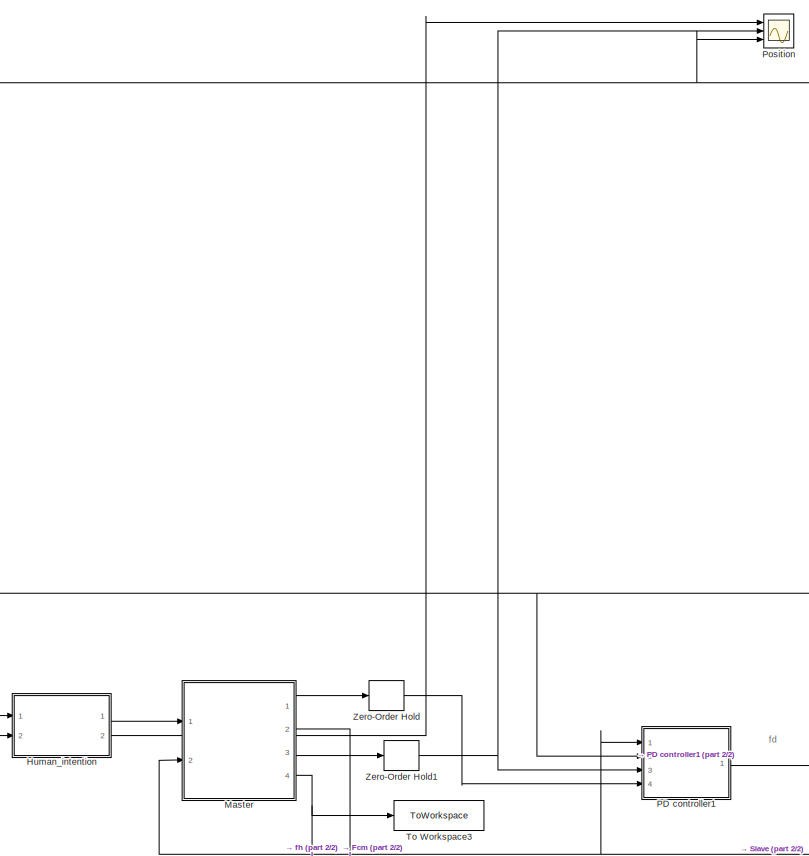
[diagram: root canvas - part 1/2, left side, full height]
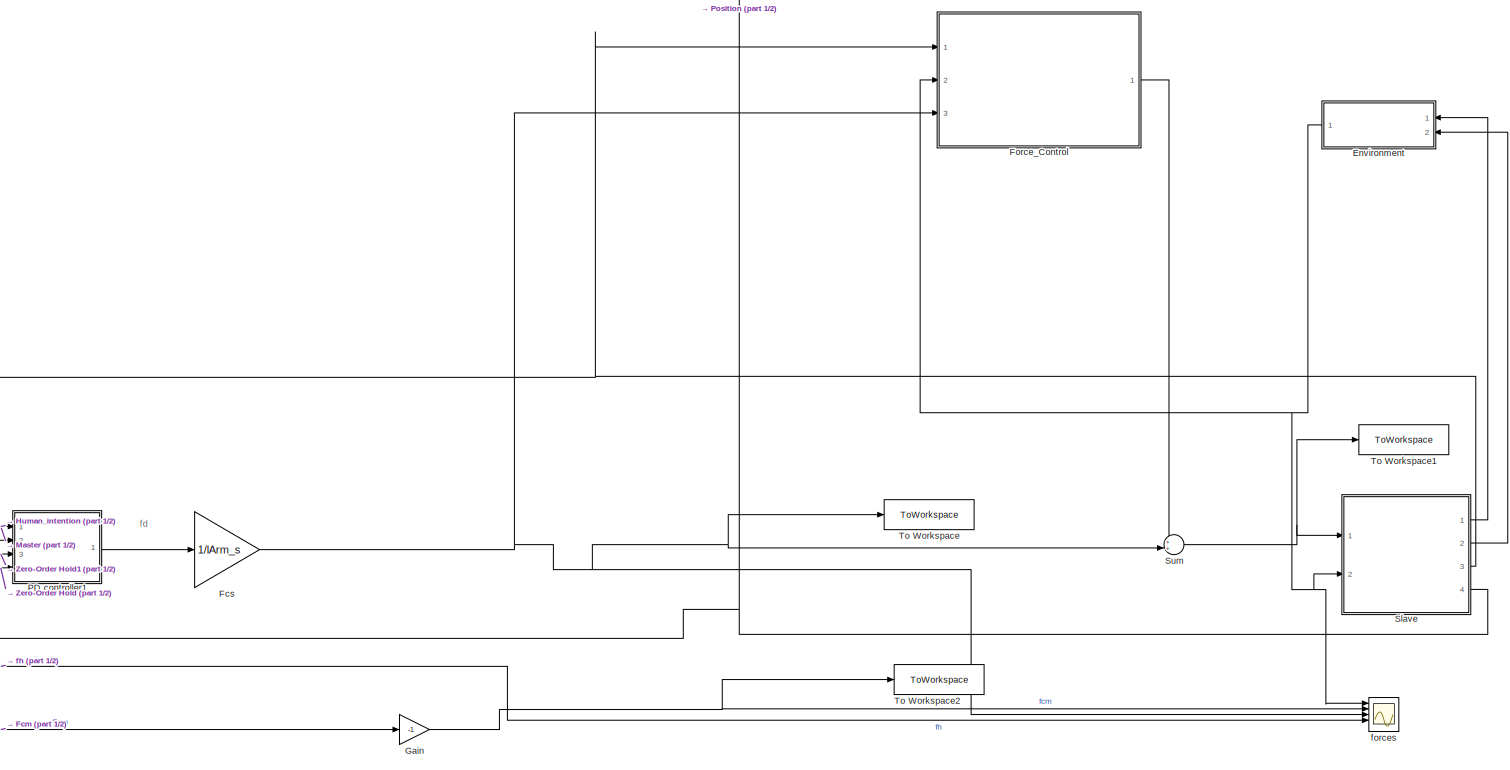
[diagram: root canvas - part 2/2, center side, full height]
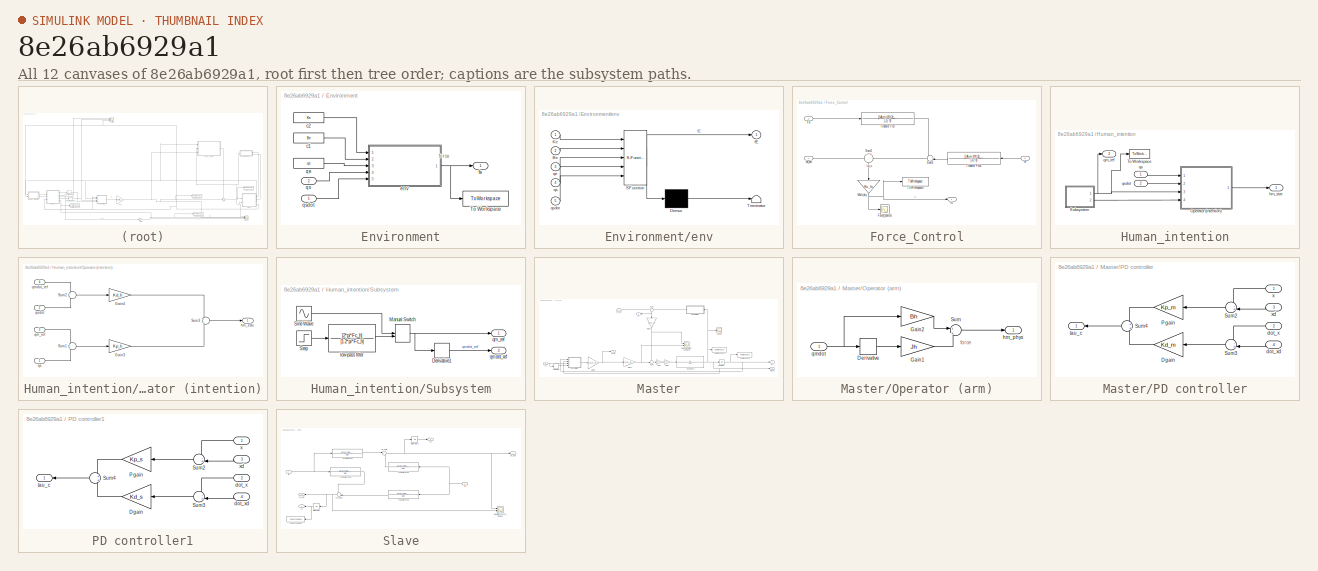
[diagram: thumbnail index - all 12 canvases of the model, root first then tree order]
MODEL slx_8e26ab6929a1
KIND model
CONFIG AbsTol = auto
CONFIG EnableMultiTasking = off
CONFIG FixedStep = auto
CONFIG MaxStep = auto
CONFIG MinStep = auto
CONFIG RelTol = 1e-3
CONFIG SampleTimeConstraint = Unconstrained
CONFIG Solver = VariableStepAuto
CONFIG SolverName = VariableStepAuto
CONFIG StartTime = 0.0
CONFIG StopTime = 7
BLOCK [SubSystem] Environment
  Ports = [2, 1]
  RequestExecContextInheritance = off
BLOCK [ToWorkspace] Environment/To Workspace
  FixptAsFi = on
  MaxDataPoints = inf
  Ports = [1]
  SampleTime = -1
  SaveFormat = Timeseries
  VariableName = fe
BLOCK [Constant] Environment/c1
  SampleTime = 0
  Value = Be
BLOCK [Constant] Environment/c2
  SampleTime = 0
  Value = Ke
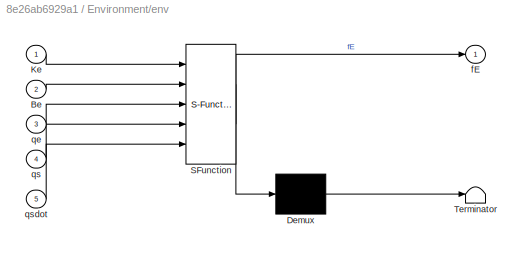
BLOCK [SubSystem] Environment/env
  ErrorFcn = Stateflow.Translate.translate
  PermitHierarchicalResolution = ExplicitOnly
  Ports = [5, 1]
  RequestExecContextInheritance = off
  SFBlockType = MATLAB Function
  TreatAsAtomicUnit = on
BLOCK [Demux] Environment/env/ Demux 
  Outputs = 1
  Ports = [1, 1]
BLOCK [S-Function] Environment/env/ SFunction 
  EnableBusSupport = on
  FunctionName = sf_sfun
  PortCounts = [5 2]
  Ports = [5, 2]
  SFcnIsStateOwnerBlock = off
  SFunctionDeploymentMode = off
  Tag = Stateflow S-Function 9
BLOCK [Terminator] Environment/env/ Terminator 
BLOCK [Inport] Environment/env/Be
  Port = 2
BLOCK [Inport] Environment/env/Ke
BLOCK [Outport] Environment/env/fE
  VectorParamsAs1DForOutWhenUnconnected = off
BLOCK [Inport] Environment/env/qe
  Port = 3
BLOCK [Inport] Environment/env/qs
  Port = 4
BLOCK [Inport] Environment/env/qsdot
  Port = 5
BLOCK [Outport] Environment/fe
  VectorParamsAs1DForOutWhenUnconnected = off
BLOCK [Constant] Environment/qe
  SampleTime = 0
  Value = qe
BLOCK [Inport] Environment/qs
  Port = 2
BLOCK [Inport] Environment/qsdot
BLOCK [Gain] Fcs
  Gain = 1/lArm_s
BLOCK [SubSystem] Force_Control
  Ports = [3, 1]
  RequestExecContextInheritance = off
BLOCK [Inport] Force_Control/Fd
  Port = 3
BLOCK [Scope] Force_Control/Force_control
  Floating = off
  NumInputPorts = 1
  Ports = [1]
  ScopeSpecificationString = Simulink.scopes.TimeScopeBlockCfg('CurrentConfiguration', extmgr.ConfigurationSet(extmgr.Configuration('Core','General UI',true),extmgr.Configuration('Core','Source UI',true),extmgr.Configuration('Sources','WiredSimulink',true,'DataLoggingVariableName','ScopeData1'),extmgr.Configuration('Visuals','Time Domain',true,'SerializedDisplays',{struct('MinYLimReal','-2.91957','MaxYLimReal','0.78438','YLab...<+1440ch>
BLOCK [Gain] Force_Control/Multiply
  Gain = Kv_fc
  NameLocation = right
BLOCK [Sum] Force_Control/Sum2
  Inputs = +-|
  Ports = [2, 1]
BLOCK [Sum] Force_Control/Sum3
  Inputs = -|+
  NameLocation = right
  Ports = [2, 1]
BLOCK [ToWorkspace] Force_Control/To Workspace3
  FixptAsFi = on
  MaxDataPoints = inf
  Ports = [1]
  SampleTime = -1
  SaveFormat = Timeseries
  VariableName = fc
BLOCK [TransferFcn] Force_Control/Transfer Fcn
  Denominator = [J_r 0]
  Numerator = [lArm_s*Kt2c_s*Kc2v_s]
BLOCK [TransferFcn] Force_Control/Transfer Fcn1
  Denominator = [J_r 0]
  Numerator = [lArm_s*Kt2c_s*Kc2v_s]
BLOCK [Outport] Force_Control/fc
BLOCK [Inport] Force_Control/fe
  Port = 2
BLOCK [Inport] Force_Control/xa_dot
BLOCK [Gain] Gain
  Gain = -1
BLOCK [SubSystem] Human_intention
  Ports = [2, 2]
  RequestExecContextInheritance = off
BLOCK [SubSystem] Human_intention/Operator (intention)
  Ports = [4, 1]
  RequestExecContextInheritance = off
BLOCK [Gain] Human_intention/Operator (intention)/Gain3
  Gain = Kp_h
BLOCK [Gain] Human_intention/Operator (intention)/Gain4
  Gain = Kd_h
BLOCK [Sum] Human_intention/Operator (intention)/Sum1
  Inputs = +|-
  Ports = [2, 1]
BLOCK [Sum] Human_intention/Operator (intention)/Sum2
  Inputs = +|-
  Ports = [2, 1]
BLOCK [Sum] Human_intention/Operator (intention)/Sum3
  Inputs = +|+
  Ports = [2, 1]
BLOCK [Outport] Human_intention/Operator (intention)/hm_star
  VectorParamsAs1DForOutWhenUnconnected = off
BLOCK [Inport] Human_intention/Operator (intention)/qm_ref
  Port = 3
BLOCK [Inport] Human_intention/Operator (intention)/qmdot_ref
  Port = 4
BLOCK [Inport] Human_intention/Operator (intention)/qs
BLOCK [Inport] Human_intention/Operator (intention)/qsdot
  Port = 2
BLOCK [SubSystem] Human_intention/Subsystem
  Ports = [0, 2]
  RequestExecContextInheritance = off
BLOCK [Derivative] Human_intention/Subsystem/Derivative1
  CoefficientInTFapproximation = 0.001
BLOCK [ManualSwitch] Human_intention/Subsystem/Manual Switch
  CurrentSetting = 0
BLOCK [Sin] Human_intention/Subsystem/Sine Wave
  Ports = [0, 1]
  SampleTime = 0
BLOCK [Step] Human_intention/Subsystem/Step
  SampleTime = 0
BLOCK [TransferFcn] Human_intention/Subsystem/low-pass filter
  Denominator = [1 2*pi*Fc_h]
  Numerator = [2*pi*Fc_h]
BLOCK [Outport] Human_intention/Subsystem/qm_ref
BLOCK [Outport] Human_intention/Subsystem/qmdot_ref
  Port = 2
BLOCK [ToWorkspace] Human_intention/To Workspace
  FixptAsFi = on
  MaxDataPoints = inf
  Ports = [1]
  SampleTime = -1
  SaveFormat = Timeseries
  VariableName = qm_ref
BLOCK [Outport] Human_intention/hm_star
BLOCK [Outport] Human_intention/qm_ref
  Port = 2
BLOCK [Inport] Human_intention/qs
BLOCK [Inport] Human_intention/qsdot
  Port = 2
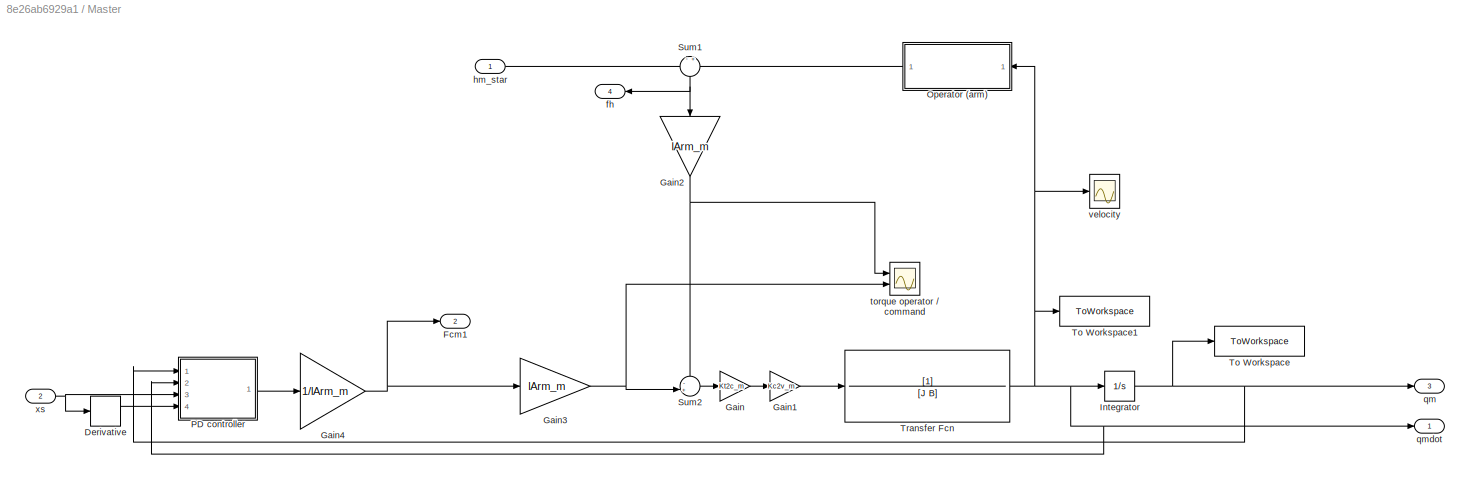
BLOCK [SubSystem] Master
  Ports = [2, 4]
  RequestExecContextInheritance = off
BLOCK [Derivative] Master/Derivative
BLOCK [Outport] Master/Fcm1
  Port = 2
BLOCK [Gain] Master/Gain
  Gain = Kt2c_m
BLOCK [Gain] Master/Gain1
  Gain = Kc2v_m
BLOCK [Gain] Master/Gain2
  Gain = lArm_m
  NameLocation = right
BLOCK [Gain] Master/Gain3
  Gain = lArm_m
  NameLocation = top
BLOCK [Gain] Master/Gain4
  Gain = 1/lArm_m
BLOCK [Integrator] Master/Integrator
  Ports = [1, 1]
BLOCK [SubSystem] Master/Operator (arm)
  Ports = [1, 1]
  RequestExecContextInheritance = off
BLOCK [Derivative] Master/Operator (arm)/Derivative
  CoefficientInTFapproximation = 0.001
BLOCK [Gain] Master/Operator (arm)/Gain1
  Gain = Jh
BLOCK [Gain] Master/Operator (arm)/Gain2
  Gain = Bh
BLOCK [Sum] Master/Operator (arm)/Sum
  Inputs = +|+
  Ports = [2, 1]
BLOCK [Outport] Master/Operator (arm)/hm_phys
  VectorParamsAs1DForOutWhenUnconnected = off
BLOCK [Inport] Master/Operator (arm)/qmdot
BLOCK [SubSystem] Master/PD controller
  Ports = [4, 1]
  RequestExecContextInheritance = off
BLOCK [Gain] Master/PD controller/D gain
  Gain = Kd_m
BLOCK [Gain] Master/PD controller/P gain
  Gain = Kp_m
BLOCK [Sum] Master/PD controller/Sum2
  Inputs = -+|
  Ports = [2, 1]
BLOCK [Sum] Master/PD controller/Sum3
  Inputs = -+|
  Ports = [2, 1]
BLOCK [Sum] Master/PD controller/Sum4
  Ports = [2, 1]
BLOCK [Inport] Master/PD controller/dot_x
  Port = 2
BLOCK [Inport] Master/PD controller/dot_xd
  Port = 4
BLOCK [Outport] Master/PD controller/tau_c
  VectorParamsAs1DForOutWhenUnconnected = off
BLOCK [Inport] Master/PD controller/x
BLOCK [Inport] Master/PD controller/xd
  Port = 3
BLOCK [Sum] Master/Sum1
  Inputs = -+
  NameLocation = left
  Ports = [2, 1]
BLOCK [Sum] Master/Sum2
  Inputs = -+|
  Ports = [2, 1]
BLOCK [ToWorkspace] Master/To Workspace
  FixptAsFi = on
  MaxDataPoints = inf
  Ports = [1]
  SampleTime = -1
  SaveFormat = Timeseries
  VariableName = qm
BLOCK [ToWorkspace] Master/To Workspace1
  FixptAsFi = on
  MaxDataPoints = inf
  Ports = [1]
  SampleTime = -1
  SaveFormat = Timeseries
  VariableName = velocity1
BLOCK [TransferFcn] Master/Transfer Fcn
  Denominator = [J B]
BLOCK [Outport] Master/fh
  Port = 4
BLOCK [Inport] Master/hm_star
BLOCK [Outport] Master/qm
  Port = 3
BLOCK [Outport] Master/qmdot
BLOCK [Scope] Master/torque operator // command
  Floating = off
  NumInputPorts = 2
  Ports = [2]
  ScopeSpecificationString = Simulink.scopes.TimeScopeBlockCfg('CurrentConfiguration', extmgr.ConfigurationSet(extmgr.Configuration('Core','General UI',true),extmgr.Configuration('Core','Source UI',true),extmgr.Configuration('Sources','WiredSimulink',true,'DataLoggingVariableName','ScopeData2'),extmgr.Configuration('Visuals','Time Domain',true,'SerializedDisplays',{struct('MinYLimReal','-3.53434','MaxYLimReal','0.39312','YLab...<+1476ch>
BLOCK [Scope] Master/velocity
  Floating = off
  NumInputPorts = 1
  Ports = [1]
  ScopeSpecificationString = Simulink.scopes.TimeScopeBlockCfg('CurrentConfiguration', extmgr.ConfigurationSet(extmgr.Configuration('Core','General UI',true),extmgr.Configuration('Core','Source UI',true),extmgr.Configuration('Sources','WiredSimulink',true),extmgr.Configuration('Visuals','Time Domain',true,'SerializedDisplays',{struct('MinYLimReal','-0.51211','MaxYLimReal','2.18407','YLabelReal','','MinYLimMag','0.00000','MaxY...<+1467ch>
BLOCK [Inport] Master/xs
  Port = 2
BLOCK [SubSystem] PD controller1
  Ports = [4, 1]
  RequestExecContextInheritance = off
BLOCK [Gain] PD controller1/D gain
  Gain = Kd_s
BLOCK [Gain] PD controller1/P gain
  Gain = Kp_s
BLOCK [Sum] PD controller1/Sum2
  Inputs = -+|
  Ports = [2, 1]
BLOCK [Sum] PD controller1/Sum3
  Inputs = -+|
  Ports = [2, 1]
BLOCK [Sum] PD controller1/Sum4
  Ports = [2, 1]
BLOCK [Inport] PD controller1/dot_x
  Port = 2
BLOCK [Inport] PD controller1/dot_xd
  Port = 4
BLOCK [Outport] PD controller1/tau_c
  VectorParamsAs1DForOutWhenUnconnected = off
BLOCK [Inport] PD controller1/x
BLOCK [Inport] PD controller1/xd
  Port = 3
BLOCK [Scope] Position
  Floating = off
  NumInputPorts = 3
  Ports = [3]
  ScopeSpecificationString = Simulink.scopes.TimeScopeBlockCfg('CurrentConfiguration', extmgr.ConfigurationSet(extmgr.Configuration('Core','General UI',true),extmgr.Configuration('Core','Source UI',true),extmgr.Configuration('Sources','WiredSimulink',true,'DataLoggingVariableName','ScopeData1'),extmgr.Configuration('Visuals','Time Domain',true,'SerializedDisplays',{struct('MinYLimReal','-0.125','MaxYLimReal','1.125','YLabelRe...<+1556ch>
BLOCK [SubSystem] Slave
  Ports = [2, 4]
  RequestExecContextInheritance = off
BLOCK [Integrator] Slave/Integrator
  Ports = [1, 1]
BLOCK [Integrator] Slave/Integrator1
  Ports = [1, 1]
BLOCK [ToWorkspace] Slave/To Workspace
  FixptAsFi = on
  MaxDataPoints = inf
  Ports = [1]
  SampleTime = -1
  SaveFormat = Timeseries
  VariableName = xs
BLOCK [TransferFcn] Slave/Transfer Fcn
  Denominator = [J B]
  Numerator = [lArm_s*Kt2c_s*Kc2v_s]
BLOCK [TransferFcn] Slave/Transfer Fcn1
  Denominator = [J B]
  Numerator = [lArm_s*Kt2c_s*Kc2v_s]
BLOCK [TransferFcn] Slave/Transfer Fcn2
  Denominator = [J B]
  Numerator = [lArm_s*Kt2c_s*Kc2v_s]
BLOCK [TransferFcn] Slave/Transfer Fcn3
  Denominator = [J B]
  Numerator = [lArm_s*Kt2c_s*Kc2v_s]
BLOCK [Scope] Slave/Velocities_Force_Control
  Floating = off
  NumInputPorts = 2
  Ports = [2]
  ScopeSpecificationString = Simulink.scopes.TimeScopeBlockCfg('CurrentConfiguration', extmgr.ConfigurationSet(extmgr.Configuration('Core','General UI',true),extmgr.Configuration('Core','Source UI',true),extmgr.Configuration('Sources','WiredSimulink',true,'DataLoggingVariableName','ScopeData1'),extmgr.Configuration('Visuals','Time Domain',true,'SerializedDisplays',{struct('MinYLimReal','-13790357962298524322105848143031196893...<+2468ch>
BLOCK [Inport] Slave/fa
BLOCK [Inport] Slave/fe
  Port = 2
BLOCK [Outport] Slave/xe
  Port = 2
BLOCK [Outport] Slave/xe_dot
  NameLocation = top
BLOCK [Sum] Slave/xe_dot2
  Inputs = |+-
  Ports = [2, 1]
BLOCK [Outport] Slave/xs
  Port = 4
BLOCK [Outport] Slave/xs_dot
  NameLocation = top
  Port = 3
BLOCK [Sum] Slave/xs_dot_2
  Inputs = +-|
  Ports = [2, 1]
BLOCK [Sum] Sum
  Inputs = ++|
  Ports = [2, 1]
BLOCK [ToWorkspace] To Workspace
  FixptAsFi = on
  MaxDataPoints = inf
  Ports = [1]
  SampleTime = -1
  SaveFormat = Timeseries
  VariableName = fd
BLOCK [ToWorkspace] To Workspace1
  FixptAsFi = on
  MaxDataPoints = inf
  Ports = [1]
  SampleTime = -1
  SaveFormat = Timeseries
  VariableName = fa
BLOCK [ToWorkspace] To Workspace2
  FixptAsFi = on
  MaxDataPoints = inf
  Ports = [1]
  SampleTime = -1
  SaveFormat = Timeseries
  VariableName = fcm
BLOCK [ToWorkspace] To Workspace3
  FixptAsFi = on
  MaxDataPoints = inf
  Ports = [1]
  SampleTime = -1
  SaveFormat = Timeseries
  VariableName = fh
BLOCK [ZeroOrderHold] Zero-Order Hold
  SampleTime = Ts
BLOCK [ZeroOrderHold] Zero-Order Hold1
  SampleTime = Ts
BLOCK [Scope] forces
  Floating = off
  NumInputPorts = 5
  Ports = [5]
  ScopeSpecificationString = Simulink.scopes.TimeScopeBlockCfg('CurrentConfiguration', extmgr.ConfigurationSet(extmgr.Configuration('Core','General UI',true),extmgr.Configuration('Core','Source UI',true),extmgr.Configuration('Sources','WiredSimulink',true,'DataLoggingVariableName','ScopeData1'),extmgr.Configuration('Visuals','Time Domain',true,'SerializedDisplays',{struct('MinYLimReal','-36.52752','MaxYLimReal','14.58843','YL...<+1610ch>
ANNOTATION (root): fd
ANNOTATION Environment: force
ANNOTATION Force_Control: tau_a
ANNOTATION Master/Operator (arm): force
LINE Environment/c1:1 -> Environment/env:2
LINE Environment/c2:1 -> Environment/env:1
NET Environment/env:1 -> Environment/To Workspace:1, Environment/fe:1
LINE Environment/qe:1 -> Environment/env:3
LINE Environment/qs:1 -> Environment/env:4
LINE Environment/qsdot:1 -> Environment/env:5
NET Environment:1 -> Force_Control:2, Slave:2, forces:1
NET Fcs:1 -> Force_Control:3, Sum:2, To Workspace:1, forces:3
LINE Force_Control/Fd:1 -> Force_Control/Transfer Fcn:1
NET Force_Control/Multiply:1 -> Force_Control/Force_control:1, Force_Control/To Workspace3:1, Force_Control/fc:1
LINE Force_Control/Sum2:1 -> Force_Control/Sum3:2
LINE Force_Control/Sum3:1 -> Force_Control/Multiply:1
LINE Force_Control/Transfer Fcn1:1 -> Force_Control/Sum2:2
LINE Force_Control/Transfer Fcn:1 -> Force_Control/Sum2:1
LINE Force_Control/fe:1 -> Force_Control/Transfer Fcn1:1
LINE Force_Control/xa_dot:1 -> Force_Control/Sum3:1
LINE Force_Control:1 -> Sum:1
NET Gain:1 -> To Workspace2:1, forces:2
LINE Human_intention/Operator (intention)/Gain3:1 -> Human_intention/Operator (intention)/Sum3:2
LINE Human_intention/Operator (intention)/Gain4:1 -> Human_intention/Operator (intention)/Sum3:1
LINE Human_intention/Operator (intention)/Sum1:1 -> Human_intention/Operator (intention)/Gain3:1
LINE Human_intention/Operator (intention)/Sum2:1 -> Human_intention/Operator (intention)/Gain4:1
LINE Human_intention/Operator (intention)/Sum3:1 -> Human_intention/Operator (intention)/hm_star:1
LINE Human_intention/Operator (intention)/qm_ref:1 -> Human_intention/Operator (intention)/Sum1:1
LINE Human_intention/Operator (intention)/qmdot_ref:1 -> Human_intention/Operator (intention)/Sum2:1
LINE Human_intention/Operator (intention)/qs:1 -> Human_intention/Operator (intention)/Sum1:2
LINE Human_intention/Operator (intention)/qsdot:1 -> Human_intention/Operator (intention)/Sum2:2
LINE Human_intention/Operator (intention):1 -> Human_intention/hm_star:1
LINE Human_intention/Subsystem/Derivative1:1 -> Human_intention/Subsystem/qmdot_ref:1
NET Human_intention/Subsystem/Manual Switch:1 -> Human_intention/Subsystem/Derivative1:1, Human_intention/Subsystem/qm_ref:1
LINE Human_intention/Subsystem/Sine Wave:1 -> Human_intention/Subsystem/Manual Switch:1
LINE Human_intention/Subsystem/Step:1 -> Human_intention/Subsystem/low-pass filter:1
LINE Human_intention/Subsystem/low-pass filter:1 -> Human_intention/Subsystem/Manual Switch:2
NET Human_intention/Subsystem:1 -> Human_intention/Operator (intention):3, Human_intention/To Workspace:1, Human_intention/qm_ref:1
LINE Human_intention/Subsystem:2 -> Human_intention/Operator (intention):4
LINE Human_intention/qs:1 -> Human_intention/Operator (intention):1
LINE Human_intention/qsdot:1 -> Human_intention/Operator (intention):2
LINE Human_intention:1 -> Master:1
LINE Human_intention:2 -> Position:1
LINE Master/Derivative:1 -> Master/PD controller:4
LINE Master/Gain1:1 -> Master/Transfer Fcn:1
NET Master/Gain2:1 -> Master/Sum2:1, Master/torque operator // command:1
NET Master/Gain3:1 -> Master/Sum2:2, Master/torque operator // command:2
NET Master/Gain4:1 -> Master/Fcm1:1, Master/Gain3:1
LINE Master/Gain:1 -> Master/Gain1:1
NET Master/Integrator:1 -> Master/PD controller:1, Master/To Workspace:1, Master/qm:1
LINE Master/Operator (arm)/Derivative:1 -> Master/Operator (arm)/Gain1:1
LINE Master/Operator (arm)/Gain1:1 -> Master/Operator (arm)/Sum:2
LINE Master/Operator (arm)/Gain2:1 -> Master/Operator (arm)/Sum:1
LINE Master/Operator (arm)/Sum:1 -> Master/Operator (arm)/hm_phys:1
NET Master/Operator (arm)/qmdot:1 -> Master/Operator (arm)/Derivative:1, Master/Operator (arm)/Gain2:1
LINE Master/Operator (arm):1 -> Master/Sum1:2
LINE Master/PD controller/D gain:1 -> Master/PD controller/Sum4:2
LINE Master/PD controller/P gain:1 -> Master/PD controller/Sum4:1
LINE Master/PD controller/Sum2:1 -> Master/PD controller/P gain:1
LINE Master/PD controller/Sum3:1 -> Master/PD controller/D gain:1
LINE Master/PD controller/Sum4:1 -> Master/PD controller/tau_c:1
LINE Master/PD controller/dot_x:1 -> Master/PD controller/Sum3:1
LINE Master/PD controller/dot_xd:1 -> Master/PD controller/Sum3:2
LINE Master/PD controller/x:1 -> Master/PD controller/Sum2:1
LINE Master/PD controller/xd:1 -> Master/PD controller/Sum2:2
LINE Master/PD controller:1 -> Master/Gain4:1
NET Master/Sum1:1 -> Master/Gain2:1, Master/fh:1
LINE Master/Sum2:1 -> Master/Gain:1
NET Master/Transfer Fcn:1 -> Master/Integrator:1, Master/Operator (arm):1, Master/PD controller:2, Master/To Workspace1:1, Master/qmdot:1, Master/velocity:1
LINE Master/hm_star:1 -> Master/Sum1:1
NET Master/xs:1 -> Master/Derivative:1, Master/PD controller:3
LINE Master:1 -> Zero-Order Hold:1
LINE Master:2 -> Gain:1
LINE Master:3 -> Zero-Order Hold1:1
NET Master:4 -> To Workspace3:1, forces:4
LINE PD controller1/D gain:1 -> PD controller1/Sum4:2
LINE PD controller1/P gain:1 -> PD controller1/Sum4:1
LINE PD controller1/Sum2:1 -> PD controller1/P gain:1
LINE PD controller1/Sum3:1 -> PD controller1/D gain:1
LINE PD controller1/Sum4:1 -> PD controller1/tau_c:1
LINE PD controller1/dot_x:1 -> PD controller1/Sum3:1
LINE PD controller1/dot_xd:1 -> PD controller1/Sum3:2
LINE PD controller1/x:1 -> PD controller1/Sum2:1
LINE PD controller1/xd:1 -> PD controller1/Sum2:2
LINE PD controller1:1 -> Fcs:1
LINE Slave/Integrator1:1 -> Slave/xe:1
NET Slave/Integrator:1 -> Slave/To Workspace:1, Slave/xs:1
LINE Slave/Transfer Fcn1:1 -> Slave/xe_dot2:2
LINE Slave/Transfer Fcn2:1 -> Slave/xs_dot_2:1
LINE Slave/Transfer Fcn3:1 -> Slave/xs_dot_2:2
LINE Slave/Transfer Fcn:1 -> Slave/xe_dot2:1
NET Slave/fa:1 -> Slave/Transfer Fcn2:1, Slave/Transfer Fcn:1
NET Slave/fe:1 -> Slave/Transfer Fcn1:1, Slave/Transfer Fcn3:1
NET Slave/xe_dot2:1 -> Slave/Integrator1:1, Slave/Velocities_Force_Control:1, Slave/xe_dot:1
NET Slave/xs_dot_2:1 -> Slave/Integrator:1, Slave/Velocities_Force_Control:2, Slave/xs_dot:1
LINE Slave:1 -> Environment:1
LINE Slave:2 -> Environment:2
NET Slave:3 -> Force_Control:1, Human_intention:2, PD controller1:2
NET Slave:4 -> Human_intention:1, Master:2, PD controller1:1, Position:3
NET Sum:1 -> Slave:1, To Workspace1:1
NET Zero-Order Hold1:1 -> PD controller1:3, Position:2
LINE Zero-Order Hold:1 -> PD controller1:4
note: NET lines group one-source signal fan-out (src -> all destinations, sorted); 1:1 wires keep LINE
CHART Environment/env states=1 transitions=1
  STATE_LABEL 'eML_blk_kernel()'
  STATE_LABEL 'SCRIPT:\nfunction fE  = environment(Ke, Be, qe, qs, qsdot)\nif qs > qe\n   fE = Ke * (qs - qe) + Be * qsdot;\nelse\n   fE = 0;\nend\n'
CHART  states=0 transitions=0
